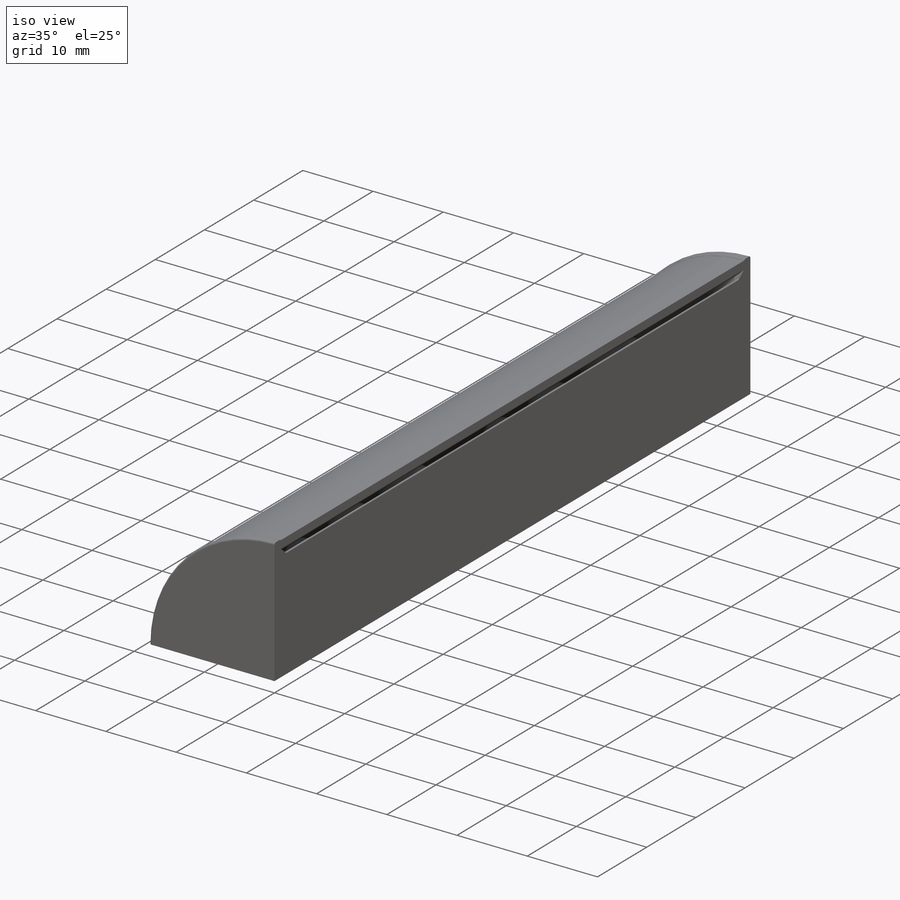
[diagram: iso view]
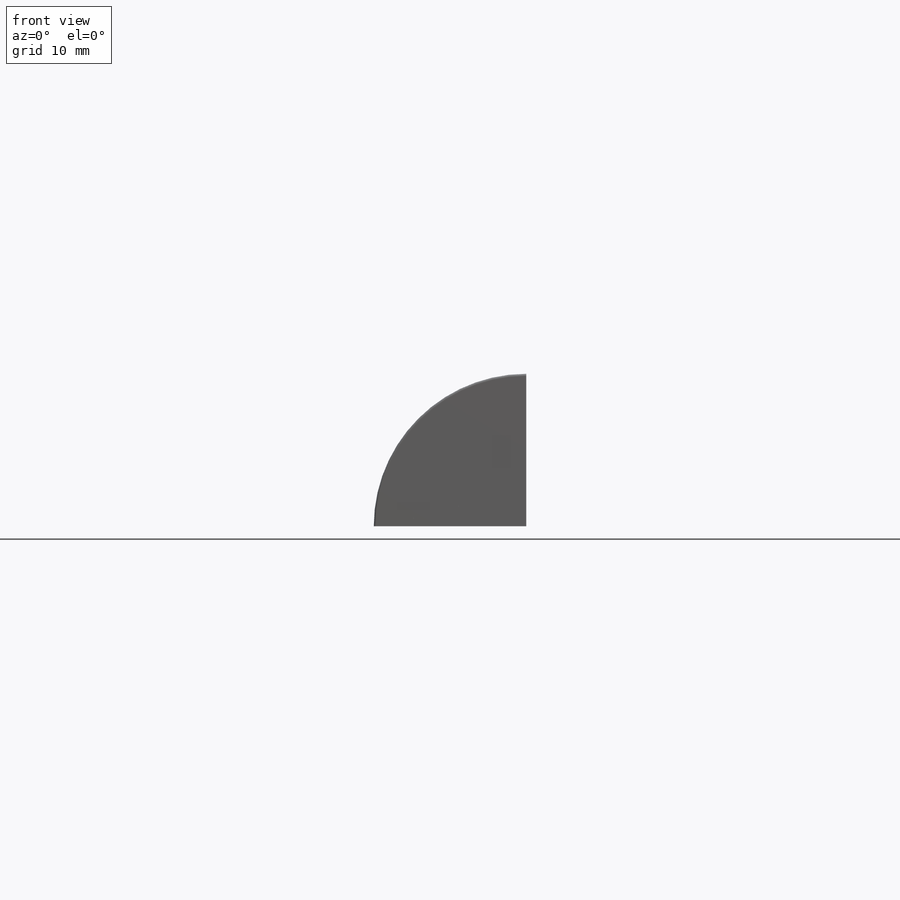
[diagram: front view]
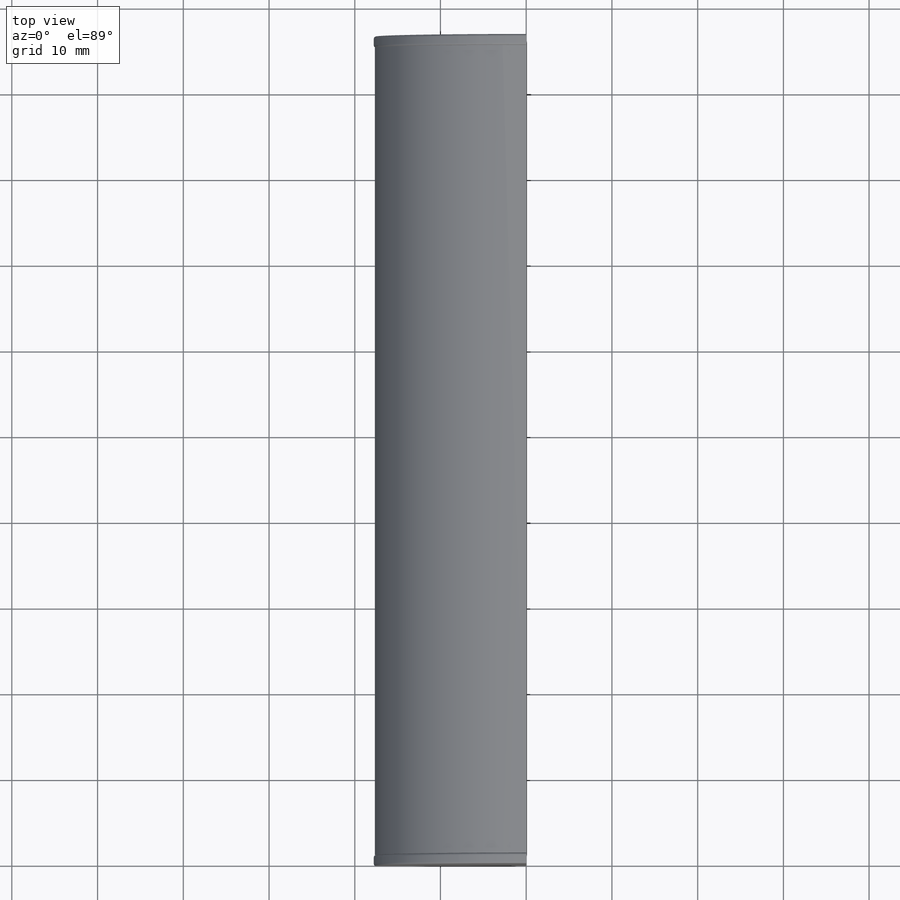
[diagram: top view]
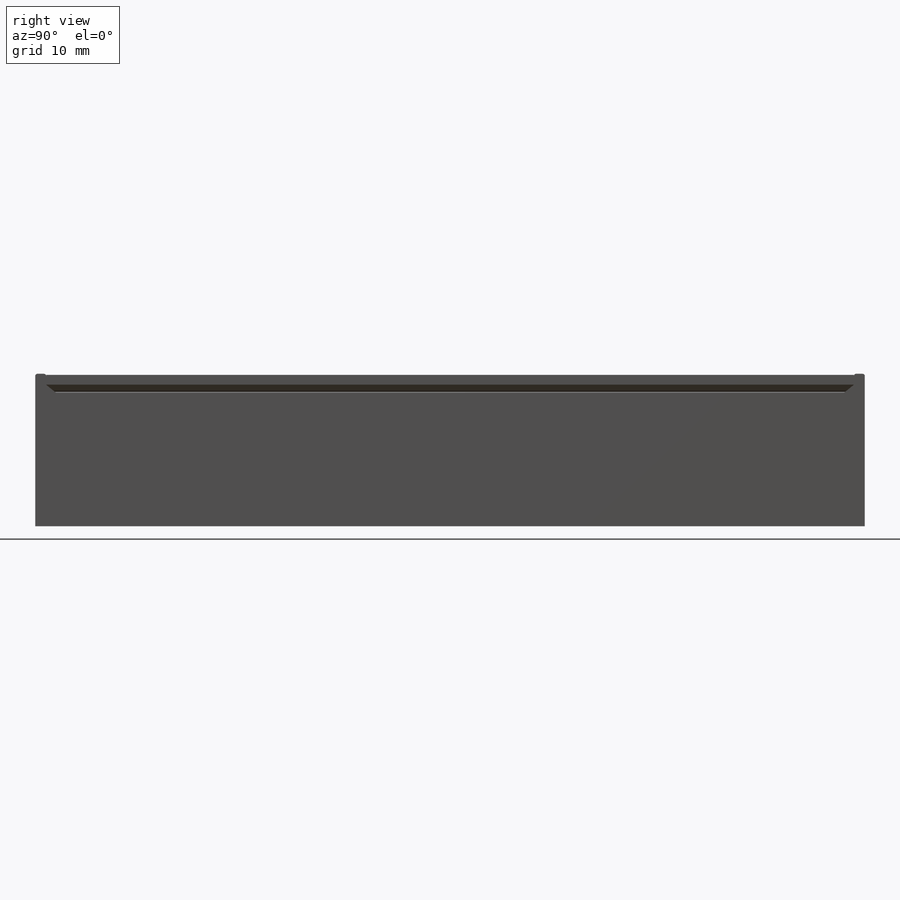
[diagram: right view]
SOLIDWORKS PART (.sldprt)
format: sldprt  version: not decoded by parser v0  size: 548,352 bytes
history: native  units: mm
features: sketch x6, extrude x4, fillet x3, plane x2, material x1, mirror x1, cut_extrude x1, revolve x1 (+13 scaffold rows collapsed)
feature tree (32):
  scaffold x13  (default folders/planes/origin — collapsed)
  material  "Material <not specified>"
  sketch  "Sketch2"  dims[D1=17.78mm D2=~0.017849mm]
  extrude  "Boss-Extrude1"  Depth=1.27mm
  sketch  "Sketch4"
  extrude  "Boss-Extrude2"  Depth=94.234mm
  plane  "Plane1"
  mirror  "Mirror1"
  fillet  "Fillet1"  Radius=0.254mm
  plane  "Plane2"
  sketch  "Sketch5"
  cut_extrude  "Cut-Extrude1"  Depth=12.7mm
  fillet  "Fillet2"  Radius=0.127mm
  sketch  "Sketch6"  dims[c1.D2=12.7mm c1.D3=10.16mm c1.D6=8.89mm c1.D7=7.62mm c1.D9=11.43mm c1.D11=10.16mm c1.D12=8.89mm c1.D1=6.35mm c1.D4=12.7mm c1.D5=10.16mm c2.D1=8.89mm c2.D8=10.16mm c2.D10=11.43mm c2.D13=10.16mm]
  extrude  "Boss-Extrude3"  Depth=3.81mm
  fillet  "Fillet3"  Radius=1.27mm
  sketch  "Sketch7"  dims[c1.D1=~4.257673mm c1.D2=~2.688632mm c1.D3=~2.431954mm c1.D4=~1.95128mm c1.D5=~3.271785mm c1.D6=~2.543228mm c1.D7=~2.337637mm c2.D1=0.635mm c2.D2=0.635mm c2.D3=0.635mm c2.D4=0.635mm c2.D5=0.635mm c2.D6=0.635mm c2.D7=0.635mm]
  revolve  "Revolve1"  Angle=360deg
  sketch  "Sketch8"  dims[D1=15.875mm]
  extrude  "Boss-Extrude4"  Depth=94.234mm
decode coverage: 13 of 16 modeling features carry decoded parameters
note: ~ marks probable driven/reference dimensions
note: suppression state not decoded; provenance and decode notes live in map.json
